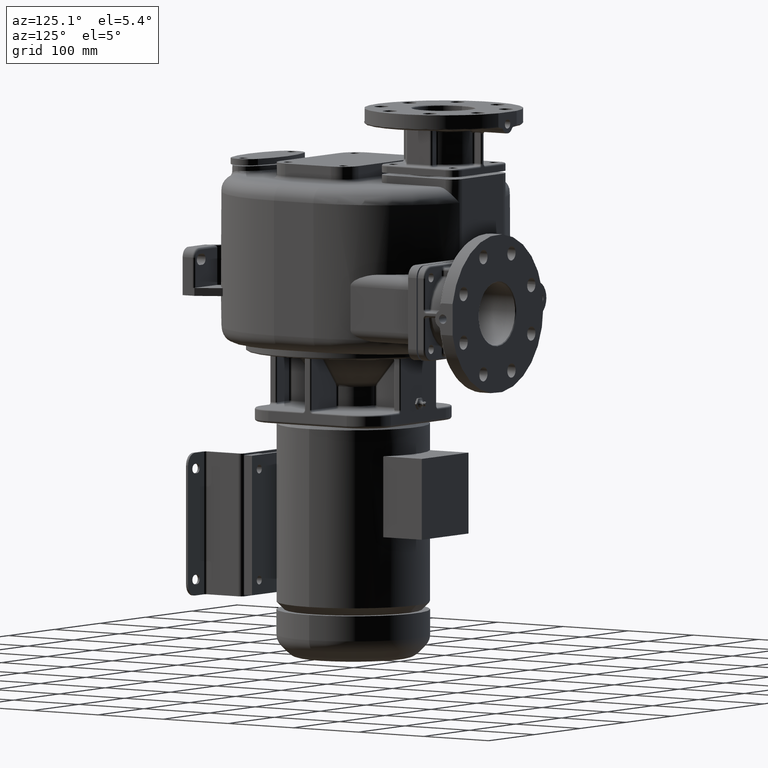
[diagram: clean part render]
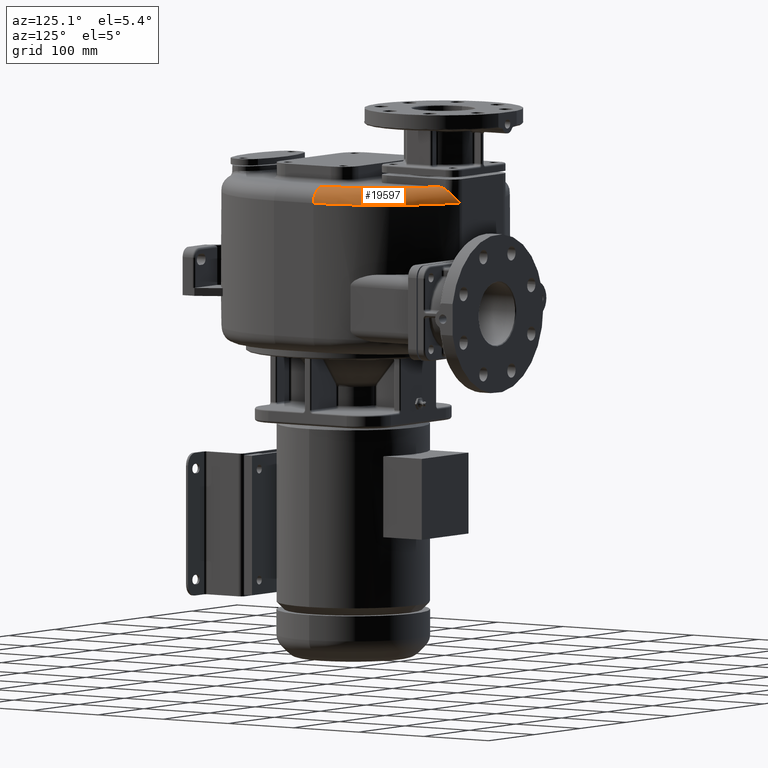
[diagram: same view with one face highlighted and labeled with its STEP entity id]
A machine part, auxiliary view. The second image highlights one B-rep face of the part: STEP entity #19597.
In plain terms, the highlighted toroidal blend (fillet) surface has major radius 137 mm and minor (blend) radius 20 mm.
Its self-contained STEP definition (entity closure, byte-faithful):
#1647=CARTESIAN_POINT('',(1.6E1,6.031889516343E1,2.875E2));
#1648=DIRECTION('',(0.E0,0.E0,1.E0));
#1649=DIRECTION('',(1.E0,0.E0,0.E0));
#1650=AXIS2_PLACEMENT_3D('',#1647,#1648,#1649);
#2513=CARTESIAN_POINT('',(1.6E1,6.031889516343E1,3.075E2));
#2514=DIRECTION('',(0.E0,0.E0,1.E0));
#2515=DIRECTION('',(1.E0,0.E0,0.E0));
#2516=AXIS2_PLACEMENT_3D('',#2513,#2514,#2515);
#3240=CARTESIAN_POINT('',(1.53E2,6.031889516343E1,2.875E2));
#3241=DIRECTION('',(0.E0,1.E0,0.E0));
#3242=DIRECTION('',(0.E0,0.E0,1.E0));
#3243=AXIS2_PLACEMENT_3D('',#3240,#3241,#3242);
#3245=CARTESIAN_POINT('',(7.6E1,1.834813894545E2,3.075E2));
#3246=CARTESIAN_POINT('',(7.6E1,1.837122290049E2,3.075E2));
#3247=CARTESIAN_POINT('',(7.6E1,1.841730617445E2,3.074935451454E2));
#3248=CARTESIAN_POINT('',(7.6E1,1.848622830050E2,3.074645752081E2));
#3249=CARTESIAN_POINT('',(7.6E1,1.855479427206E2,3.074164688939E2));
#3250=CARTESIAN_POINT('',(7.6E1,1.862297072545E2,3.073493770053E2));
#3251=CARTESIAN_POINT('',(7.6E1,1.869070679462E2,3.072634407956E2));
#3252=CARTESIAN_POINT('',(7.6E1,1.875787942853E2,3.071589410626E2));
#3253=CARTESIAN_POINT('',(7.6E1,1.882444853633E2,3.070360914517E2));
#3254=CARTESIAN_POINT('',(7.6E1,1.889037443278E2,3.068950867907E2));
#3255=CARTESIAN_POINT('',(7.6E1,1.895554184234E2,3.067363233094E2));
#3256=CARTESIAN_POINT('',(7.6E1,1.901992131805E2,3.065600468891E2));
#3257=CARTESIAN_POINT('',(7.6E1,1.908347727197E2,3.063664967396E2));
#3258=CARTESIAN_POINT('',(7.6E1,1.914610509240E2,3.061561603867E2));
#3259=CARTESIAN_POINT('',(7.6E1,1.920777637360E2,3.059293283199E2));
#3260=CARTESIAN_POINT('',(7.6E1,1.926846809307E2,3.056862455635E2));
#3261=CARTESIAN_POINT('',(7.6E1,1.932808312099E2,3.054274852687E2));
#3262=CARTESIAN_POINT('',(7.6E1,1.938660432864E2,3.051533310656E2));
#3263=CARTESIAN_POINT('',(7.6E1,1.944401053724E2,3.048640495715E2));
#3264=CARTESIAN_POINT('',(7.6E1,1.948146728483E2,3.046616074730E2));
#3265=CARTESIAN_POINT('',(7.6E1,1.95E2,3.045579831449E2));
#3267=CARTESIAN_POINT('',(7.6E1,1.95E2,3.045579831449E2));
#3268=CARTESIAN_POINT('',(7.6E1,1.951462226610E2,3.044762238083E2));
#3269=CARTESIAN_POINT('',(7.599572319820E1,1.954402657322E2,3.043085193323E2));
#3270=CARTESIAN_POINT('',(7.597606667664E1,1.958856516596E2,3.040442516997E2));
#3271=CARTESIAN_POINT('',(7.594277081841E1,1.963348664008E2,3.037671355029E2));
#3272=CARTESIAN_POINT('',(7.589549452062E1,1.967871416110E2,3.034772262720E2));
#3273=CARTESIAN_POINT('',(7.583381517889E1,1.972425648059E2,3.031740313320E2));
#3274=CARTESIAN_POINT('',(7.575731436130E1,1.977008111312E2,3.028572846043E2));
#3275=CARTESIAN_POINT('',(7.566563993346E1,1.981611969598E2,3.025269657793E2));
#3276=CARTESIAN_POINT('',(7.555847640458E1,1.986230552608E2,3.021830678844E2));
#3277=CARTESIAN_POINT('',(7.543530214736E1,1.990865078794E2,3.018249695091E2));
#3278=CARTESIAN_POINT('',(7.529580852124E1,1.995507114029E2,3.014527499859E2));
#3279=CARTESIAN_POINT('',(7.513973009022E1,2.000148541949E2,3.010664980491E2));
#3280=CARTESIAN_POINT('',(7.496674356476E1,2.004783714799E2,3.006661089729E2));
#3281=CARTESIAN_POINT('',(7.477640994870E1,2.009409427881E2,3.002512358038E2));
#3282=CARTESIAN_POINT('',(7.456859636079E1,2.014014889288E2,2.998221958300E2));
#3283=CARTESIAN_POINT('',(7.434324719501E1,2.018589582293E2,2.993793480232E2));
#3284=CARTESIAN_POINT('',(7.409993591003E1,2.023130719294E2,2.989223006245E2));
#3285=CARTESIAN_POINT('',(7.383860233273E1,2.027628149001E2,2.984513660286E2));
#3286=CARTESIAN_POINT('',(7.355928122833E1,2.032071333180E2,2.979669497832E2));
#3287=CARTESIAN_POINT('',(7.326198642457E1,2.036451108690E2,2.974693549244E2));
#3288=CARTESIAN_POINT('',(7.294648009299E1,2.040762081016E2,2.969584476221E2));
#3289=CARTESIAN_POINT('',(7.261306916859E1,2.044991570269E2,2.964349551086E2));
#3290=CARTESIAN_POINT('',(7.226215326109E1,2.049127550748E2,2.958996454905E2));
#3291=CARTESIAN_POINT('',(7.189363370165E1,2.053164460156E2,2.953524853151E2));
#3292=CARTESIAN_POINT('',(7.150789618558E1,2.057091438761E2,2.947941474325E2));
#3293=CARTESIAN_POINT('',(7.110548121549E1,2.060897282689E2,2.942254569782E2));
#3294=CARTESIAN_POINT('',(7.068688970746E1,2.064572343083E2,2.936471159694E2));
#3295=CARTESIAN_POINT('',(7.025227354765E1,2.068110408281E2,2.930593157070E2));
#3296=CARTESIAN_POINT('',(6.980249145414E1,2.071499907465E2,2.924631743407E2));
#3297=CARTESIAN_POINT('',(6.933848989712E1,2.074730341465E2,2.918598389387E2));
#3298=CARTESIAN_POINT('',(6.886058444440E1,2.077796352843E2,2.912495947739E2));
#3299=CARTESIAN_POINT('',(6.836968179179E1,2.080689064332E2,2.906334620067E2));
#3300=CARTESIAN_POINT('',(6.786684474006E1,2.083399922869E2,2.900125972089E2));
#3301=CARTESIAN_POINT('',(6.735318299222E1,2.085921455342E2,2.893881552487E2));
#3302=CARTESIAN_POINT('',(6.682917258854E1,2.088249967417E2,2.887604897819E2));
#3303=CARTESIAN_POINT('',(6.629592367684E1,2.090379165677E2,2.881307015214E2));
#3304=CARTESIAN_POINT('',(6.593517690098E1,2.091661819731E2,2.877103267908E2));
#3305=CARTESIAN_POINT('',(6.575352112676E1,2.092268772715E2,2.875E2));
#15779=CARTESIAN_POINT('',(1.73E2,6.031889516343E1,2.875E2));
#15780=CARTESIAN_POINT('',(6.575352112676E1,2.092268772715E2,2.875E2));
#15781=VERTEX_POINT('',#15779);
#15782=VERTEX_POINT('',#15780);
#15783=CARTESIAN_POINT('',(1.53E2,6.031889516343E1,3.075E2));
#15784=CARTESIAN_POINT('',(7.6E1,1.834813894545E2,3.075E2));
#15785=VERTEX_POINT('',#15783);
#15786=VERTEX_POINT('',#15784);
#15808=VERTEX_POINT('',#3265);
#19584=CARTESIAN_POINT('',(1.6E1,6.031889516343E1,2.875E2));
#19585=DIRECTION('',(0.E0,0.E0,-1.E0));
#19586=DIRECTION('',(9.999727331280E-1,-7.384646269587E-3,0.E0));
#19587=AXIS2_PLACEMENT_3D('',#19584,#19585,#19586);
#19588=TOROIDAL_SURFACE('',#19587,1.37E2,2.E1);
#19589=ORIENTED_EDGE('',*,*,#18539,.F.);
#19590=ORIENTED_EDGE('',*,*,#19576,.F.);
#19591=ORIENTED_EDGE('',*,*,#19029,.T.);
#19593=ORIENTED_EDGE('',*,*,#19592,.T.);
#19594=ORIENTED_EDGE('',*,*,#18503,.T.);
#19595=EDGE_LOOP('',(#19589,#19590,#19591,#19593,#19594));
#19596=FACE_OUTER_BOUND('',#19595,.F.);
#19597=ADVANCED_FACE('',(#19596),#19588,.T.);
#1651=CIRCLE('',#1650,1.57E2);
#2517=CIRCLE('',#2516,1.37E2);
#3244=CIRCLE('',#3243,2.E1);
#3266=B_SPLINE_CURVE_WITH_KNOTS('',3,(#3245,#3246,#3247,#3248,#3249,#3250,#3251,
#3252,#3253,#3254,#3255,#3256,#3257,#3258,#3259,#3260,#3261,#3262,#3263,#3264,
#3265),.UNSPECIFIED.,.F.,.F.,(4,1,1,1,1,1,1,1,1,1,1,1,1,1,1,1,1,1,4),(0.E0,
5.555555555556E-2,1.111111111111E-1,1.666666666667E-1,2.222222222222E-1,
2.777777777778E-1,3.333333333333E-1,3.888888888889E-1,4.444444444444E-1,5.E-1,
5.555555555556E-1,6.111111111111E-1,6.666666666667E-1,7.222222222222E-1,
7.777777777778E-1,8.333333333333E-1,8.888888888889E-1,9.444444444444E-1,1.E0),
.UNSPECIFIED.);
#3306=B_SPLINE_CURVE_WITH_KNOTS('',3,(#3267,#3268,#3269,#3270,#3271,#3272,#3273,
#3274,#3275,#3276,#3277,#3278,#3279,#3280,#3281,#3282,#3283,#3284,#3285,#3286,
#3287,#3288,#3289,#3290,#3291,#3292,#3293,#3294,#3295,#3296,#3297,#3298,#3299,
#3300,#3301,#3302,#3303,#3304,#3305),.UNSPECIFIED.,.F.,.F.,(4,1,1,1,1,1,1,1,1,1,
1,1,1,1,1,1,1,1,1,1,1,1,1,1,1,1,1,1,1,1,1,1,1,1,1,1,4),(0.E0,2.777777777778E-2,
5.555555555556E-2,8.333333333333E-2,1.111111111111E-1,1.388888888889E-1,
1.666666666667E-1,1.944444444444E-1,2.222222222222E-1,2.5E-1,2.777777777778E-1,
3.055555555556E-1,3.333333333333E-1,3.611111111111E-1,3.888888888889E-1,
4.166666666667E-1,4.444444444444E-1,4.722222222222E-1,5.E-1,5.277777777778E-1,
5.555555555556E-1,5.833333333333E-1,6.111111111111E-1,6.388888888889E-1,
6.666666666667E-1,6.944444444444E-1,7.222222222222E-1,7.5E-1,7.777777777778E-1,
8.055555555556E-1,8.333333333333E-1,8.611111111111E-1,8.888888888889E-1,
9.166666666667E-1,9.444444444444E-1,9.722222222222E-1,1.E0),.UNSPECIFIED.);
#18503=EDGE_CURVE('',#15808,#15782,#3306,.T.);
#18539=EDGE_CURVE('',#15781,#15782,#1651,.T.);
#19029=EDGE_CURVE('',#15785,#15786,#2517,.T.);
#19576=EDGE_CURVE('',#15785,#15781,#3244,.T.);
#19592=EDGE_CURVE('',#15786,#15808,#3266,.T.);